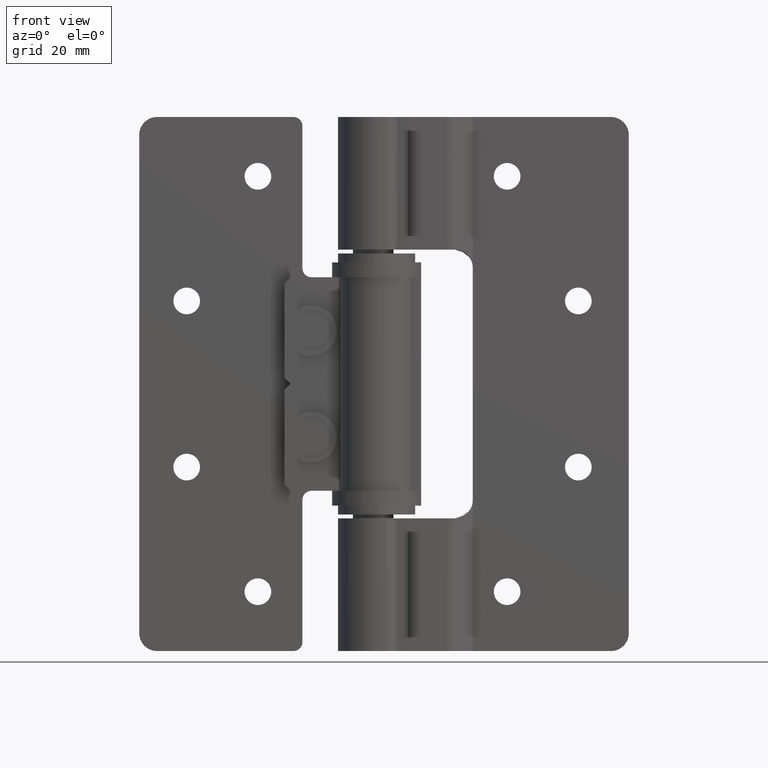
[diagram: clean part render]
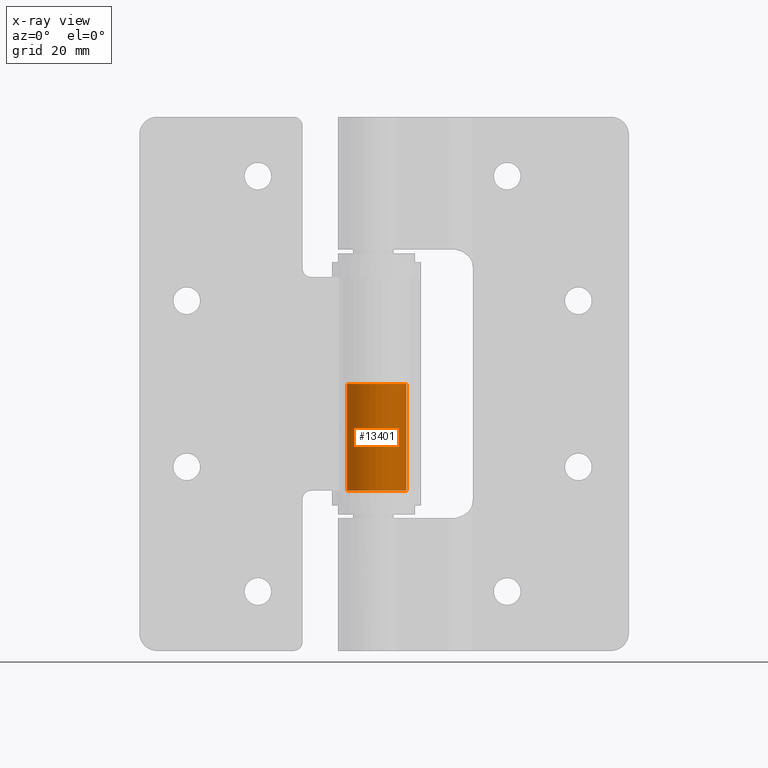
[diagram: x-ray — body ghosted, one internal face saturated and labeled with its STEP entity id]
A machine part, front view, then the same camera in x-ray: the body is ghosted and one INTERNAL B-rep face — a face not visible from any outside direction — is saturated and labeled: STEP entity #13401.
In plain terms, the highlighted face is a freeform B-spline surface patch.
Its self-contained STEP definition (entity closure, byte-faithful):
#13295=CARTESIAN_POINT('',(5.000000000003390,0.0,27.0));
#13296=VERTEX_POINT('',#13295);
#13304=CARTESIAN_POINT('',(5.000000000003390,0.0,45.0));
#13305=VERTEX_POINT('',#13304);
#13306=CARTESIAN_POINT('',(5.000000000003390,0.0,45.0));
#13307=CARTESIAN_POINT('',(5.000000000003390,0.0,27.0));
#13308=QUASI_UNIFORM_CURVE('',1,(#13306,#13307),.UNSPECIFIED.,.F.,.U.);
#13309=EDGE_CURVE('',#13305,#13296,#13308,.T.);
#13326=CARTESIAN_POINT('',(-4.999809615324080,0.043632677491894,45.450000000000010));
#13327=CARTESIAN_POINT('',(-4.999809615324080,0.043632677491894,26.538750000000000));
#13328=CARTESIAN_POINT('',(-5.044992575538783,-5.133821742357843,45.450000000000003));
#13329=CARTESIAN_POINT('',(-5.044992575538783,-5.133821742357843,26.538750000000000));
#13330=CARTESIAN_POINT('',(0.130884741539539,-4.998286624881094,45.450000000000010));
#13331=CARTESIAN_POINT('',(0.130884741539539,-4.998286624881094,26.538750000000000));
#13332=CARTESIAN_POINT('',(5.306762058617863,-4.862751507404346,45.450000000000003));
#13333=CARTESIAN_POINT('',(5.306762058617863,-4.862751507404346,26.538750000000000));
#13334=CARTESIAN_POINT('',(4.990673992112723,0.305242697674486,45.450000000000010));
#13335=CARTESIAN_POINT('',(4.990673992112723,0.305242697674486,26.538750000000000));
#13343=(BOUNDED_SURFACE()B_SPLINE_SURFACE(1,2,((#13326,#13328,#13330,#13332,#13334),(#13327,#13329,#13331,#13333,#13335)),.UNSPECIFIED.,.F.,.F.,.U.)B_SPLINE_SURFACE_WITH_KNOTS((2,2),(3,2,3),(0.0,18.911250000000010),(0.0,8.489496324197710,16.978992648395419),.UNSPECIFIED.)GEOMETRIC_REPRESENTATION_ITEM()RATIONAL_B_SPLINE_SURFACE(((1.0,0.694658370458997,1.0,0.694658370458997,1.0),(1.0,0.694658370458997,1.0,0.694658370458997,1.0)))REPRESENTATION_ITEM('')SURFACE());
#13344=CARTESIAN_POINT('',(-5.000000000000270,0.0,27.0));
#13345=VERTEX_POINT('',#13344);
#13346=CARTESIAN_POINT('',(5.000000000003390,0.0,27.0));
#13347=CARTESIAN_POINT('',(5.000105680728815,-0.409069136842924,27.000000000000021));
#13348=CARTESIAN_POINT('',(4.921734547479605,-1.043041746717746,27.000000000000021));
#13349=CARTESIAN_POINT('',(4.637734613496491,-1.920733799380961,26.999999999999929));
#13350=CARTESIAN_POINT('',(4.305466189174760,-2.580857651444362,27.000000000000160));
#13351=CARTESIAN_POINT('',(3.829191132928543,-3.248374550816626,27.0));
#13352=CARTESIAN_POINT('',(3.208531282874557,-3.876761471635031,26.999999999999879));
#13353=CARTESIAN_POINT('',(2.493316073746531,-4.361002521176340,26.999999999999890));
#13354=CARTESIAN_POINT('',(1.710808079531111,-4.719371409224946,27.000000000000099));
#13355=CARTESIAN_POINT('',(0.801809275922320,-4.977044194169985,26.999999999999950));
#13356=CARTESIAN_POINT('',(-0.413091978465331,-5.044308523416435,27.000000000000139));
#13357=CARTESIAN_POINT('',(-1.583686369851558,-4.788977288010933,26.999999999998320));
#13358=CARTESIAN_POINT('',(-2.474406000495374,-4.367473625073671,27.000000000003151));
#13359=CARTESIAN_POINT('',(-3.136443150492166,-3.919253147676966,26.999999999996039));
#13360=CARTESIAN_POINT('',(-3.692943723776926,-3.402298397378144,27.000000000001059));
#13361=CARTESIAN_POINT('',(-4.185020920626797,-2.771735453477276,27.000000000000728));
#13362=CARTESIAN_POINT('',(-4.615236254380120,-2.001437959154251,27.000000000000028));
#13363=CARTESIAN_POINT('',(-4.925059883955832,-1.063547479784264,26.999999999998579));
#13364=CARTESIAN_POINT('',(-5.000039575198330,-0.347702780446539,27.000000000001020));
#13365=CARTESIAN_POINT('',(-5.000000000000270,0.0,27.0));
#13366=B_SPLINE_CURVE_WITH_KNOTS('',3,(#13346,#13347,#13348,#13349,#13350,#13351,#13352,#13353,#13354,#13355,#13356,#13357,#13358,#13359,#13360,#13361,#13362,#13363,#13364,#13365),.UNSPECIFIED.,.F.,.U.,(4,1,1,1,1,1,1,1,1,1,1,1,1,1,1,1,1,4),(0.000000267782818,1.227177116664135,1.902108391636164,2.761182515477470,3.436131263767186,4.356542948255138,5.399678359206556,6.013285440904840,6.933690554078067,8.222131520127268,9.633423828638513,10.492486756903070,11.167438953438531,12.026487754723099,12.762808807462161,13.560488428071190,14.664950495891210,15.708061828849740),.UNSPECIFIED.);
#13367=EDGE_CURVE('',#13296,#13345,#13366,.T.);
#13368=ORIENTED_EDGE('',*,*,#13367,.T.);
#13369=CARTESIAN_POINT('',(-5.000000000000270,0.0,45.0));
#13370=VERTEX_POINT('',#13369);
#13371=CARTESIAN_POINT('',(-5.000000000000270,0.0,45.0));
#13372=CARTESIAN_POINT('',(-5.000000000000270,0.0,27.0));
#13373=QUASI_UNIFORM_CURVE('',1,(#13371,#13372),.UNSPECIFIED.,.F.,.U.);
#13374=EDGE_CURVE('',#13370,#13345,#13373,.T.);
#13375=ORIENTED_EDGE('',*,*,#13374,.F.);
#13376=CARTESIAN_POINT('',(5.000000000003390,0.0,45.0));
#13377=CARTESIAN_POINT('',(5.000184485269439,-0.470443888083626,45.000000000000043));
#13378=CARTESIAN_POINT('',(4.898189749540903,-1.186175423198187,45.000000000000021));
#13379=CARTESIAN_POINT('',(4.498063781103462,-2.262737917860240,44.999999999999879));
#13380=CARTESIAN_POINT('',(3.973641907552886,-3.102304727430734,45.000000000000412));
#13381=CARTESIAN_POINT('',(3.309535329890089,-3.774424871470933,44.999999999999588));
#13382=CARTESIAN_POINT('',(2.585355873883885,-4.311578920369667,45.000000000000391));
#13383=CARTESIAN_POINT('',(1.810464105270418,-4.695693805287177,44.999999999999737));
#13384=CARTESIAN_POINT('',(0.760612602690508,-4.979296820718031,45.000000000000412));
#13385=CARTESIAN_POINT('',(-0.227746045786027,-5.033994058436150,44.999999999998600));
#13386=CARTESIAN_POINT('',(-1.139795762039617,-4.887098971214241,45.000000000001229));
#13387=CARTESIAN_POINT('',(-1.921215095286921,-4.639581685872113,44.999999999998998));
#13388=CARTESIAN_POINT('',(-2.600430658223978,-4.297698259588234,45.000000000000931));
#13389=CARTESIAN_POINT('',(-3.295115413606072,-3.789037997924468,45.000000000000021));
#13390=CARTESIAN_POINT('',(-3.930277480580333,-3.146118543159250,44.999999999999822));
#13391=CARTESIAN_POINT('',(-4.536317572065897,-2.214682116932699,45.000000000000867));
#13392=CARTESIAN_POINT('',(-4.918701542658017,-1.124930051907644,44.999999999997613));
#13393=CARTESIAN_POINT('',(-5.000023981936480,-0.347697952177649,45.000000000001577));
#13394=CARTESIAN_POINT('',(-5.000000000000270,0.0,45.0));
#13395=B_SPLINE_CURVE_WITH_KNOTS('',3,(#13376,#13377,#13378,#13379,#13380,#13381,#13382,#13383,#13384,#13385,#13386,#13387,#13388,#13389,#13390,#13391,#13392,#13393,#13394),.UNSPECIFIED.,.F.,.U.,(4,1,1,1,1,1,1,1,1,1,1,1,1,1,1,1,4),(0.000000267782818,1.411267712209565,2.147564138834580,3.436131263767186,4.356542948255138,4.970152786664274,6.135979206162425,6.933690554078067,8.222131520127268,9.081210401162867,9.694818733062625,10.676569186506841,11.351521276133150,12.271934176880990,13.376400181370590,14.664950495891210,15.708061828849740),.UNSPECIFIED.);
#13396=EDGE_CURVE('',#13305,#13370,#13395,.T.);
#13397=ORIENTED_EDGE('',*,*,#13396,.F.);
#13398=ORIENTED_EDGE('',*,*,#13309,.T.);
#13399=EDGE_LOOP('',(#13368,#13375,#13397,#13398));
#13400=FACE_OUTER_BOUND('',#13399,.T.);
#13401=ADVANCED_FACE('',(#13400),#13343,.F.);